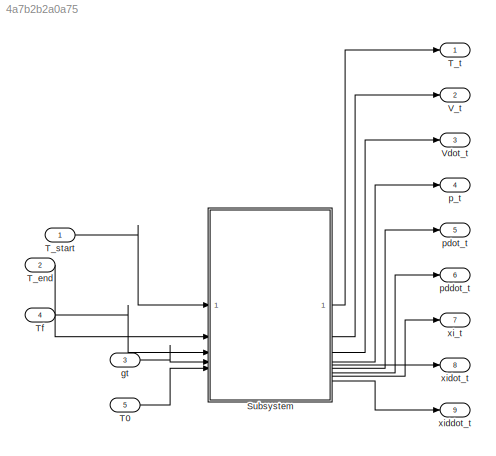
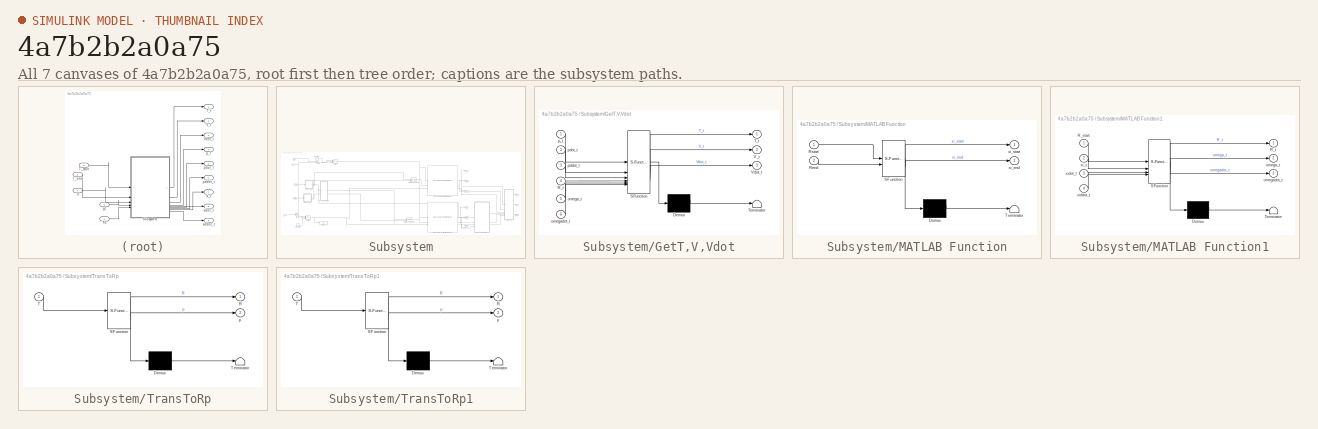
[diagram: thumbnail index - all 7 canvases of the model, root first then tree order]
MODEL slx_4a7b2b2a0a75
KIND model
CONFIG AbsTol = auto
CONFIG EnableMultiTasking = off
CONFIG FixedStep = 0.001
CONFIG MaxStep = auto
CONFIG MinStep = auto
CONFIG RelTol = 1e-3
CONFIG SampleTimeConstraint = Unconstrained
CONFIG SolverName = ode8
CONFIG StartTime = 0.0
CONFIG StopTime = 10
WORKSPACE source: mxarray member
WORKSPACE q_init_l: Simulink.Parameter (value not decoded)
WORKSPACE q_init_r: Simulink.Parameter (value not decoded)
WORKSPACE robot: robotics.RigidBodyTree (value not decoded)
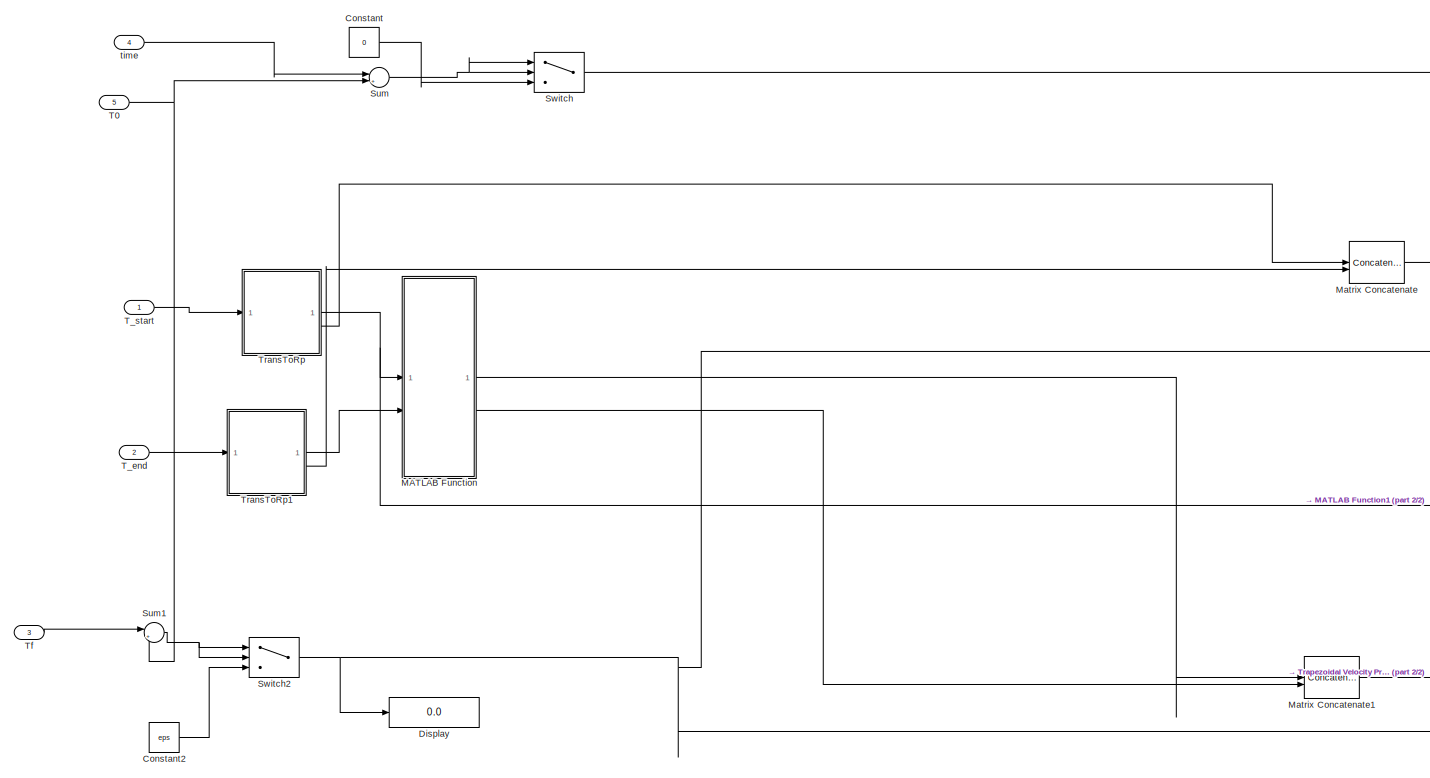
[diagram: Subsystem - part 1/2, left side, full height]
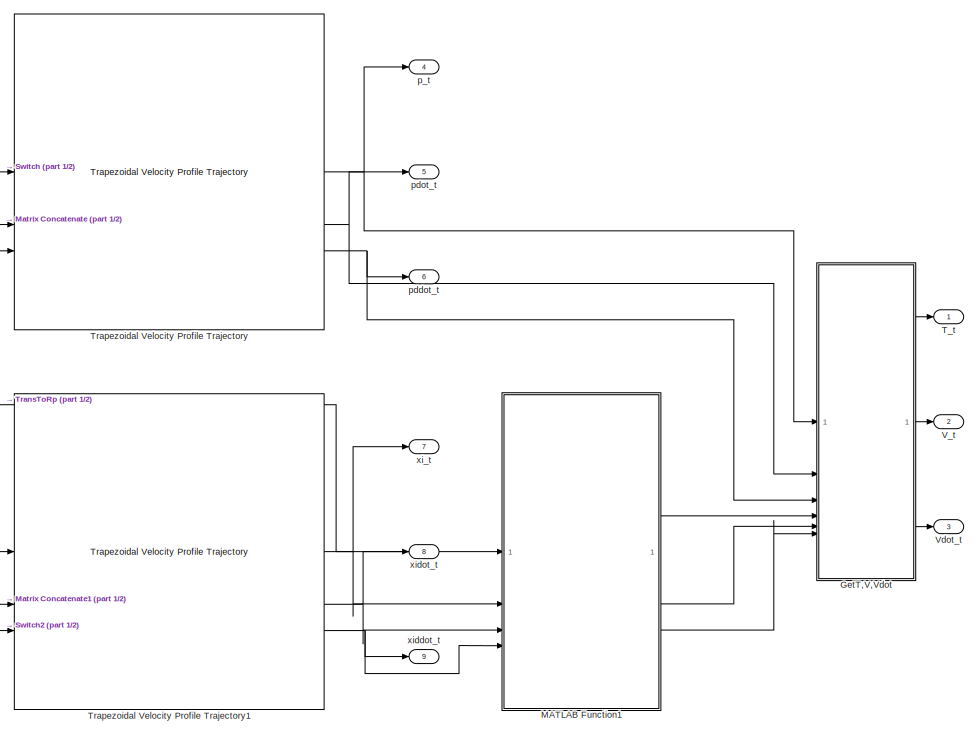
[diagram: Subsystem - part 2/2, right side, full height]
BLOCK [SubSystem] Subsystem
BLOCK [Constant] Subsystem/Constant
  Value = 0
BLOCK [Constant] Subsystem/Constant2
  Value = eps
BLOCK [Display] Subsystem/Display
  Decimation = 1
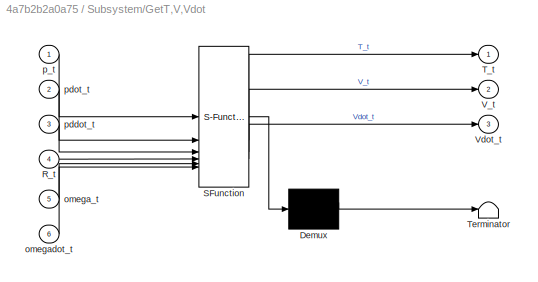
BLOCK [SubSystem] Subsystem/GetT,V,Vdot
  ErrorFcn = Stateflow.Translate.translate
  PermitHierarchicalResolution = ExplicitOnly
  SFBlockType = MATLAB Function
  TreatAsAtomicUnit = on
BLOCK [Demux] Subsystem/GetT,V,Vdot/ Demux 
  Outputs = 1
BLOCK [S-Function] Subsystem/GetT,V,Vdot/ SFunction 
  EnableBusSupport = on
  FunctionName = sf_sfun
  PortCounts = [6 4]
  SFcnIsStateOwnerBlock = off
  SFunctionDeploymentMode = off
  Tag = Stateflow S-Function 13
BLOCK [Terminator] Subsystem/GetT,V,Vdot/ Terminator 
BLOCK [Inport] Subsystem/GetT,V,Vdot/R_t
  Port = 4
BLOCK [Outport] Subsystem/GetT,V,Vdot/T_t
BLOCK [Outport] Subsystem/GetT,V,Vdot/V_t
  Port = 2
BLOCK [Outport] Subsystem/GetT,V,Vdot/Vdot_t
  Port = 3
BLOCK [Inport] Subsystem/GetT,V,Vdot/omega_t
  Port = 5
BLOCK [Inport] Subsystem/GetT,V,Vdot/omegadot_t
  Port = 6
BLOCK [Inport] Subsystem/GetT,V,Vdot/p_t
BLOCK [Inport] Subsystem/GetT,V,Vdot/pddot_t
  Port = 3
BLOCK [Inport] Subsystem/GetT,V,Vdot/pdot_t
  Port = 2
BLOCK [SubSystem] Subsystem/MATLAB Function
  ErrorFcn = Stateflow.Translate.translate
  PermitHierarchicalResolution = ExplicitOnly
  SFBlockType = MATLAB Function
  TreatAsAtomicUnit = on
BLOCK [Demux] Subsystem/MATLAB Function/ Demux 
  Outputs = 1
BLOCK [S-Function] Subsystem/MATLAB Function/ SFunction 
  EnableBusSupport = on
  FunctionName = sf_sfun
  PortCounts = [2 3]
  SFcnIsStateOwnerBlock = off
  SFunctionDeploymentMode = off
  Tag = Stateflow S-Function 14
BLOCK [Terminator] Subsystem/MATLAB Function/ Terminator 
BLOCK [Inport] Subsystem/MATLAB Function/Rend
  Port = 2
BLOCK [Inport] Subsystem/MATLAB Function/Rstart
BLOCK [Outport] Subsystem/MATLAB Function/xi_end
  Port = 2
BLOCK [Outport] Subsystem/MATLAB Function/xi_start
BLOCK [SubSystem] Subsystem/MATLAB Function1
  ErrorFcn = Stateflow.Translate.translate
  PermitHierarchicalResolution = ExplicitOnly
  SFBlockType = MATLAB Function
  TreatAsAtomicUnit = on
BLOCK [Demux] Subsystem/MATLAB Function1/ Demux 
  Outputs = 1
BLOCK [S-Function] Subsystem/MATLAB Function1/ SFunction 
  EnableBusSupport = on
  FunctionName = sf_sfun
  PortCounts = [4 4]
  SFcnIsStateOwnerBlock = off
  SFunctionDeploymentMode = off
  Tag = Stateflow S-Function 15
BLOCK [Terminator] Subsystem/MATLAB Function1/ Terminator 
BLOCK [Inport] Subsystem/MATLAB Function1/R_start
BLOCK [Outport] Subsystem/MATLAB Function1/R_t
BLOCK [Outport] Subsystem/MATLAB Function1/omega_t
  Port = 2
BLOCK [Outport] Subsystem/MATLAB Function1/omegadot_t
  Port = 3
BLOCK [Inport] Subsystem/MATLAB Function1/xi_t
  Port = 2
BLOCK [Inport] Subsystem/MATLAB Function1/xiddot_t
  Port = 4
BLOCK [Inport] Subsystem/MATLAB Function1/xidot_t
  Port = 3
BLOCK [Concatenate] Subsystem/Matrix Concatenate
  ConcatenateDimension = 2
  Mode = Multidimensional array
BLOCK [Concatenate] Subsystem/Matrix Concatenate1
  ConcatenateDimension = 2
  Mode = Multidimensional array
BLOCK [Sum] Subsystem/Sum
  Inputs = |+-
BLOCK [Sum] Subsystem/Sum1
  Inputs = |+-
BLOCK [Switch] Subsystem/Switch
  Criteria = u2 > Threshold
  InputSameDT = off
  SaturateOnIntegerOverflow = off
BLOCK [Switch] Subsystem/Switch2
  Criteria = u2 > Threshold
  InputSameDT = off
  SaturateOnIntegerOverflow = off
BLOCK [Inport] Subsystem/T0
  Port = 5
BLOCK [Inport] Subsystem/T_end
  Port = 2
BLOCK [Inport] Subsystem/T_start
BLOCK [Outport] Subsystem/T_t
BLOCK [Inport] Subsystem/Tf
  Port = 3
BLOCK [SubSystem] Subsystem/TransToRp
  ErrorFcn = Stateflow.Translate.translate
  PermitHierarchicalResolution = ExplicitOnly
  SFBlockType = MATLAB Function
  TreatAsAtomicUnit = on
BLOCK [Demux] Subsystem/TransToRp/ Demux 
  Outputs = 1
BLOCK [S-Function] Subsystem/TransToRp/ SFunction 
  EnableBusSupport = on
  FunctionName = sf_sfun
  PortCounts = [1 3]
  SFcnIsStateOwnerBlock = off
  SFunctionDeploymentMode = off
  Tag = Stateflow S-Function 16
BLOCK [Terminator] Subsystem/TransToRp/ Terminator 
BLOCK [Outport] Subsystem/TransToRp/R
BLOCK [Inport] Subsystem/TransToRp/T
BLOCK [Outport] Subsystem/TransToRp/p
  Port = 2
BLOCK [SubSystem] Subsystem/TransToRp1
  ErrorFcn = Stateflow.Translate.translate
  PermitHierarchicalResolution = ExplicitOnly
  SFBlockType = MATLAB Function
  TreatAsAtomicUnit = on
BLOCK [Demux] Subsystem/TransToRp1/ Demux 
  Outputs = 1
BLOCK [S-Function] Subsystem/TransToRp1/ SFunction 
  EnableBusSupport = on
  FunctionName = sf_sfun
  PortCounts = [1 3]
  SFcnIsStateOwnerBlock = off
  SFunctionDeploymentMode = off
  Tag = Stateflow S-Function 17
BLOCK [Terminator] Subsystem/TransToRp1/ Terminator 
BLOCK [Outport] Subsystem/TransToRp1/R
BLOCK [Inport] Subsystem/TransToRp1/T
BLOCK [Outport] Subsystem/TransToRp1/p
  Port = 2
BLOCK [Reference] Subsystem/Trapezoidal Velocity Profile Trajectory  REF=robotcorelib/Trapezoidal Velocity Profile Trajectory
  LibrarySourceBlock = robotutilslib/Trapezoidal Velocity Profile Trajectory
  SourceBlock = robotcorelib/Trapezoidal Velocity Profile Trajectory
  SourceType = robotics.slcore.internal.block.TrapVelTrajSys
BLOCK [Reference] Subsystem/Trapezoidal Velocity Profile Trajectory1  REF=robotcorelib/Trapezoidal Velocity Profile Trajectory
  LibrarySourceBlock = robotutilslib/Trapezoidal Velocity Profile Trajectory
  SourceBlock = robotcorelib/Trapezoidal Velocity Profile Trajectory
  SourceType = robotics.slcore.internal.block.TrapVelTrajSys
BLOCK [Outport] Subsystem/V_t
  Port = 2
BLOCK [Outport] Subsystem/Vdot_t
  Port = 3
BLOCK [Outport] Subsystem/p_t
  Port = 4
BLOCK [Outport] Subsystem/pddot_t
  Port = 6
BLOCK [Outport] Subsystem/pdot_t
  Port = 5
BLOCK [Inport] Subsystem/time
  Port = 4
BLOCK [Outport] Subsystem/xi_t
  Port = 7
BLOCK [Outport] Subsystem/xiddot_t
  Port = 9
BLOCK [Outport] Subsystem/xidot_t
  Port = 8
BLOCK [Inport] T0
  Port = 5
BLOCK [Inport] T_end
  Port = 2
  PortDimensions = [4,4]
BLOCK [Inport] T_start
  PortDimensions = [4,4]
BLOCK [Outport] T_t
BLOCK [Inport] Tf
  Port = 4
BLOCK [Outport] V_t
  Port = 2
BLOCK [Outport] Vdot_t
  Port = 3
BLOCK [Inport] gt
  Port = 3
BLOCK [Outport] p_t
  Port = 4
BLOCK [Outport] pddot_t
  Port = 6
BLOCK [Outport] pdot_t
  Port = 5
BLOCK [Outport] xi_t
  Port = 7
BLOCK [Outport] xiddot_t
  Port = 9
BLOCK [Outport] xidot_t
  Port = 8
LINE Subsystem/Constant2:1 -> Subsystem/Switch2:3
LINE Subsystem/Constant:1 -> Subsystem/Switch:3
LINE Subsystem/GetT,V,Vdot:1 -> Subsystem/T_t:1
LINE Subsystem/GetT,V,Vdot:2 -> Subsystem/V_t:1
LINE Subsystem/GetT,V,Vdot:3 -> Subsystem/Vdot_t:1
LINE Subsystem/MATLAB Function1:1 -> Subsystem/GetT,V,Vdot:4
LINE Subsystem/MATLAB Function1:2 -> Subsystem/GetT,V,Vdot:5
LINE Subsystem/MATLAB Function1:3 -> Subsystem/GetT,V,Vdot:6
LINE Subsystem/MATLAB Function:1 -> Subsystem/Matrix Concatenate1:1
LINE Subsystem/MATLAB Function:2 -> Subsystem/Matrix Concatenate1:2
LINE Subsystem/Matrix Concatenate1:1 -> Subsystem/Trapezoidal Velocity Profile Trajectory1:2
LINE Subsystem/Matrix Concatenate:1 -> Subsystem/Trapezoidal Velocity Profile Trajectory:2
NET Subsystem/Sum1:1 -> Subsystem/Switch2:1, Subsystem/Switch2:2
NET Subsystem/Sum:1 -> Subsystem/Switch:1, Subsystem/Switch:2
NET Subsystem/Switch2:1 -> Subsystem/Display:1, Subsystem/Trapezoidal Velocity Profile Trajectory1:3, Subsystem/Trapezoidal Velocity Profile Trajectory:3
NET Subsystem/Switch:1 -> Subsystem/Trapezoidal Velocity Profile Trajectory1:1, Subsystem/Trapezoidal Velocity Profile Trajectory:1
NET Subsystem/T0:1 -> Subsystem/Sum1:2, Subsystem/Sum:2
LINE Subsystem/T_end:1 -> Subsystem/TransToRp1:1
LINE Subsystem/T_start:1 -> Subsystem/TransToRp:1
LINE Subsystem/Tf:1 -> Subsystem/Sum1:1
LINE Subsystem/TransToRp1:1 -> Subsystem/MATLAB Function:2
LINE Subsystem/TransToRp1:2 -> Subsystem/Matrix Concatenate:2
NET Subsystem/TransToRp:1 -> Subsystem/MATLAB Function1:1, Subsystem/MATLAB Function:1
LINE Subsystem/TransToRp:2 -> Subsystem/Matrix Concatenate:1
NET Subsystem/Trapezoidal Velocity Profile Trajectory1:1 -> Subsystem/MATLAB Function1:2, Subsystem/xi_t:1
NET Subsystem/Trapezoidal Velocity Profile Trajectory1:2 -> Subsystem/MATLAB Function1:3, Subsystem/xidot_t:1
NET Subsystem/Trapezoidal Velocity Profile Trajectory1:3 -> Subsystem/MATLAB Function1:4, Subsystem/xiddot_t:1
NET Subsystem/Trapezoidal Velocity Profile Trajectory:1 -> Subsystem/GetT,V,Vdot:1, Subsystem/p_t:1
NET Subsystem/Trapezoidal Velocity Profile Trajectory:2 -> Subsystem/GetT,V,Vdot:2, Subsystem/pdot_t:1
NET Subsystem/Trapezoidal Velocity Profile Trajectory:3 -> Subsystem/GetT,V,Vdot:3, Subsystem/pddot_t:1
LINE Subsystem/time:1 -> Subsystem/Sum:1
LINE Subsystem:1 -> T_t:1
LINE Subsystem:2 -> V_t:1
LINE Subsystem:3 -> Vdot_t:1
LINE Subsystem:4 -> p_t:1
LINE Subsystem:5 -> pdot_t:1
LINE Subsystem:6 -> pddot_t:1
LINE Subsystem:7 -> xi_t:1
LINE Subsystem:8 -> xidot_t:1
LINE Subsystem:9 -> xiddot_t:1
LINE T0:1 -> Subsystem:5
LINE T_end:1 -> Subsystem:2
LINE T_start:1 -> Subsystem:1
LINE Tf:1 -> Subsystem:3
LINE gt:1 -> Subsystem:4
note: NET lines group one-source signal fan-out (src -> all destinations, sorted); 1:1 wires keep LINE
CHART Subsystem/GetT,V,Vdot states=1 transitions=1
  STATE_LABEL 'eML_blk_kernel()'
  STATE_LABEL "SCRIPT:\nfunction [T_t,V_t,Vdot_t] = getTVVdot(p_t,pdot_t,pddot_t,R_t,omega_t,omegadot_t)\n\nT_t = RpToTrans(R_t,p_t);\nV_t = [R_t'*pdot_t;omega_t];\nRdot_t = (R_t*VecToso3(omega_t))';\nVdot_t = [Rdot_t'*pdot_t+R_t'*pddot_t;omegadot_t];\n"
CHART Subsystem/MATLAB Function states=1 transitions=1
  STATE_LABEL 'eML_blk_kernel()'
  STATE_LABEL "SCRIPT:\nfunction [xi_start,xi_end] = fcn(Rstart,Rend)\n\nxi_start = zeros(3,1);\nxi_end = zeros(3,1);\n\nxi_end = so3ToVec(MatrixLog3((Rstart)'*Rend));\n"
CHART Subsystem/MATLAB Function1 states=1 transitions=1
  STATE_LABEL 'eML_blk_kernel()'
  STATE_LABEL 'SCRIPT:\nfunction [R_t,omega_t,omegadot_t] = ExpCoordinateToSO3(R_start,xi_t,xidot_t,xiddot_t)\nR_t = eye(3);\nomega_t = zeros(3,1);\nomegadot_t = zeros(3,1);\n\n\nR_t = R_start*MatrixExp3(VecToso3(xi_t));\nomega_t = dexp3(-xi_t)*xidot_t;\nomegadot_t = dexp3(-xi_t)*xiddot_t+ ddexp3(-xi_t,-xidot_t)*xidot_t;'
CHART Subsystem/TransToRp states=1 transitions=1
  STATE_LABEL 'eML_blk_kernel()'
  STATE_LABEL 'SCRIPT:\nfunction [R,p] = TransToRp(T)\n\n[R,p] = TransToRp(T);\n\n'
CHART Subsystem/TransToRp1 states=1 transitions=1
  STATE_LABEL 'eML_blk_kernel()'
  STATE_LABEL 'SCRIPT:\nfunction [R,p] = TransToRp(T)\n\n[R,p] = TransToRp(T);\n\n'
CHART  states=0 transitions=0
CHART  states=0 transitions=0
CHART  states=0 transitions=0
CHART  states=0 transitions=0
CHART  states=0 transitions=0
